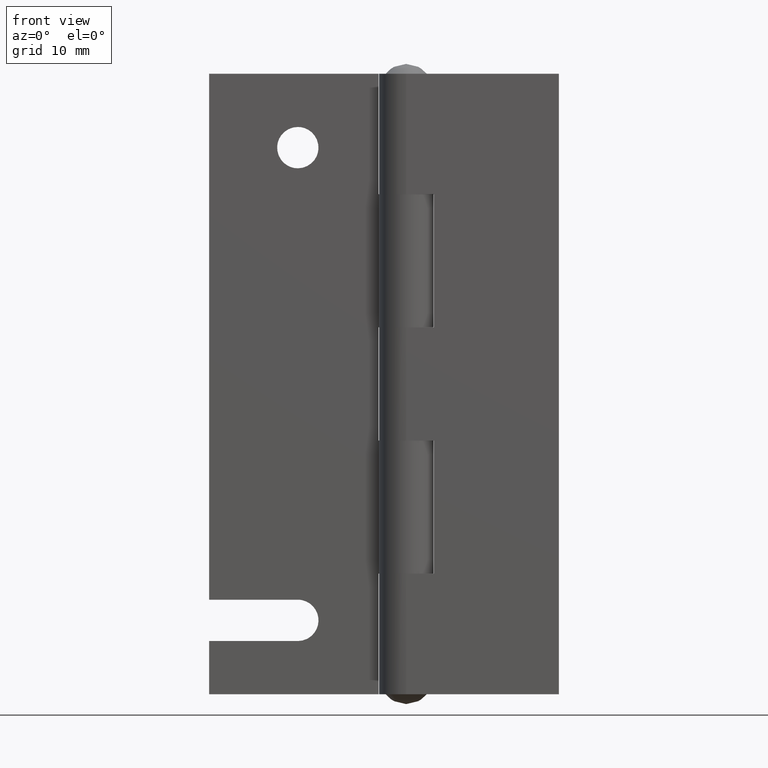
[diagram: clean part render]
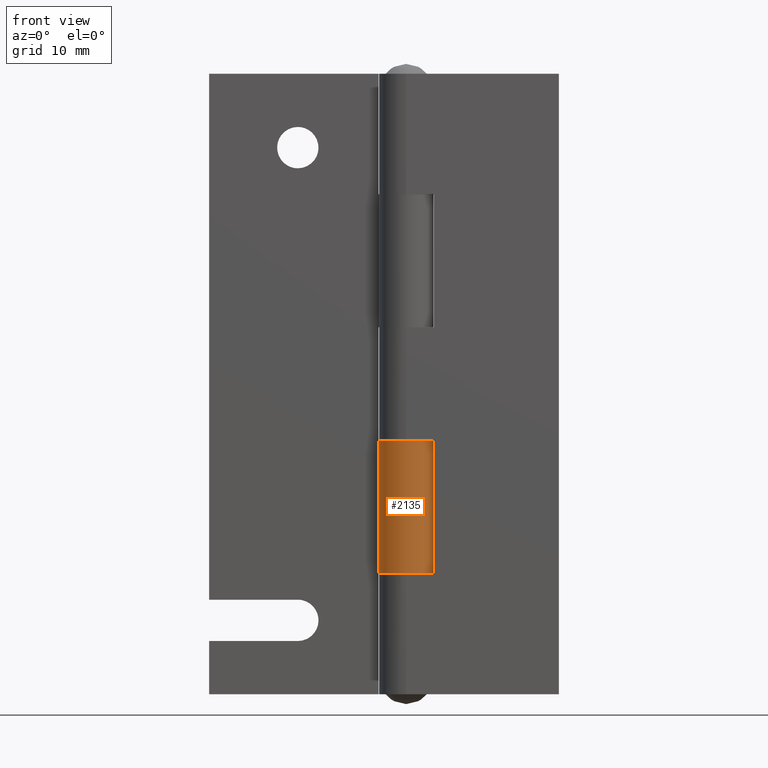
[diagram: same view with one face highlighted and labeled with its STEP entity id]
A machine part, front view. The second image highlights one B-rep face of the part: STEP entity #2135.
In plain terms, the highlighted face is a freeform B-spline surface patch.
Its self-contained STEP definition (entity closure, byte-faithful):
#1521=CARTESIAN_POINT('',(-2.161596632121730,1.700000000000000,25.750000000000000));
#1522=VERTEX_POINT('',#1521);
#1528=CARTESIAN_POINT('',(0.0,2.750000000000000,25.750000000000000));
#1529=VERTEX_POINT('',#1528);
#1530=CARTESIAN_POINT('',(0.0,2.750000000000000,25.750000000000000));
#1531=CARTESIAN_POINT('',(2.189246665130535,2.750000000000000,25.750000000000007));
#1532=CARTESIAN_POINT('',(2.680012078636981,0.616469997939796,25.750000000000000));
#1533=CARTESIAN_POINT('',(3.170777492143427,-1.517060004120410,25.750000000000007));
#1534=CARTESIAN_POINT('',(1.201561484069792,-2.473610721192807,25.750000000000000));
#1535=CARTESIAN_POINT('',(-0.767654524003843,-3.430161438265203,25.750000000000007));
#1536=CARTESIAN_POINT('',(-2.141301820012224,-1.725493122447127,25.750000000000000));
#1537=CARTESIAN_POINT('',(-3.514949116020605,-0.020824806629052,25.750000000000007));
#1538=CARTESIAN_POINT('',(-2.161596632121729,1.700000000000000,25.750000000000000));
#1546=(BOUNDED_CURVE()B_SPLINE_CURVE(2,(#1530,#1531,#1532,#1533,#1534,#1535,#1536,#1537,#1538),.UNSPECIFIED.,.F.,.U.)B_SPLINE_CURVE_WITH_KNOTS((3,2,2,2,3),(0.0,0.250000000000000,0.500000000000000,0.750000000000000,1.0),.UNSPECIFIED.)CURVE()GEOMETRIC_REPRESENTATION_ITEM()RATIONAL_B_SPLINE_CURVE((1.0,0.782358903682237,1.0,0.782358903682237,1.0,0.782358903682237,1.0,0.782358903682237,1.0))REPRESENTATION_ITEM(''));
#1547=EDGE_CURVE('',#1529,#1522,#1546,.T.);
#1711=CARTESIAN_POINT('',(0.0,2.750000000000000,12.250000000000000));
#1712=VERTEX_POINT('',#1711);
#1718=CARTESIAN_POINT('',(-2.161596632121730,1.700000000000000,12.250000000000000));
#1719=VERTEX_POINT('',#1718);
#1720=CARTESIAN_POINT('',(-2.161596632121728,1.700000000000001,12.250000000000000));
#1721=CARTESIAN_POINT('',(-3.514949116020605,-0.020824806629050,12.250000000000002));
#1722=CARTESIAN_POINT('',(-2.141301820012225,-1.725493122447126,12.250000000000000));
#1723=CARTESIAN_POINT('',(-0.767654524003846,-3.430161438265202,12.250000000000002));
#1724=CARTESIAN_POINT('',(1.201561484069788,-2.473610721192809,12.250000000000000));
#1725=CARTESIAN_POINT('',(3.170777492143426,-1.517060004120415,12.250000000000002));
#1726=CARTESIAN_POINT('',(2.680012078636981,0.616469997939794,12.250000000000000));
#1727=CARTESIAN_POINT('',(2.189246665130536,2.750000000000000,12.250000000000002));
#1728=CARTESIAN_POINT('',(0.0,2.750000000000000,12.250000000000000));
#1736=(BOUNDED_CURVE()B_SPLINE_CURVE(2,(#1720,#1721,#1722,#1723,#1724,#1725,#1726,#1727,#1728),.UNSPECIFIED.,.F.,.U.)B_SPLINE_CURVE_WITH_KNOTS((3,2,2,2,3),(0.0,0.250000000000000,0.500000000000000,0.750000000000000,1.0),.UNSPECIFIED.)CURVE()GEOMETRIC_REPRESENTATION_ITEM()RATIONAL_B_SPLINE_CURVE((1.0,0.782358903682237,1.0,0.782358903682237,1.0,0.782358903682237,1.0,0.782358903682237,1.0))REPRESENTATION_ITEM(''));
#1737=EDGE_CURVE('',#1719,#1712,#1736,.T.);
#2095=CARTESIAN_POINT('',(-2.091116405400085,1.785982132908004,26.087500000000009));
#2096=CARTESIAN_POINT('',(-2.091116405400085,1.785982132908004,11.904062500000000));
#2097=CARTESIAN_POINT('',(-3.556834062676618,0.069847249842288,26.087500000000009));
#2098=CARTESIAN_POINT('',(-3.556834062676618,0.069847249842288,11.904062499999998));
#2099=CARTESIAN_POINT('',(-2.159621559922048,-1.702508360602043,26.087500000000009));
#2100=CARTESIAN_POINT('',(-2.159621559922048,-1.702508360602043,11.904062500000000));
#2101=CARTESIAN_POINT('',(-0.762409057167478,-3.474863971046374,26.087500000000009));
#2102=CARTESIAN_POINT('',(-0.762409057167478,-3.474863971046374,11.904062499999998));
#2103=CARTESIAN_POINT('',(1.248473874283754,-2.450267941518011,26.087500000000009));
#2104=CARTESIAN_POINT('',(1.248473874283754,-2.450267941518011,11.904062500000000));
#2105=CARTESIAN_POINT('',(3.259356805734985,-1.425671911989647,26.087500000000009));
#2106=CARTESIAN_POINT('',(3.259356805734985,-1.425671911989647,11.904062499999998));
#2107=CARTESIAN_POINT('',(2.646751900247529,0.746461237128954,26.087500000000009));
#2108=CARTESIAN_POINT('',(2.646751900247529,0.746461237128954,11.904062500000000));
#2109=CARTESIAN_POINT('',(2.034146994760073,2.918594386247555,26.087500000000009));
#2110=CARTESIAN_POINT('',(2.034146994760073,2.918594386247555,11.904062499999998));
#2111=CARTESIAN_POINT('',(-0.215762513251574,2.741522667766101,26.087500000000009));
#2112=CARTESIAN_POINT('',(-0.215762513251574,2.741522667766101,11.904062500000000));
#2120=(BOUNDED_SURFACE()B_SPLINE_SURFACE(1,2,((#2095,#2097,#2099,#2101,#2103,#2105,#2107,#2109,#2111),(#2096,#2098,#2100,#2102,#2104,#2106,#2108,#2110,#2112)),.UNSPECIFIED.,.F.,.F.,.U.)B_SPLINE_SURFACE_WITH_KNOTS((2,2),(3,2,2,2,3),(0.0,14.183437500000011),(0.0,3.935862934459764,7.871725868919529,11.807588803379289,15.743451737839059),.UNSPECIFIED.)GEOMETRIC_REPRESENTATION_ITEM()RATIONAL_B_SPLINE_SURFACE(((1.0,0.773010453362737,1.0,0.773010453362737,1.0,0.773010453362737,1.0,0.773010453362737,1.0),(1.0,0.773010453362737,1.0,0.773010453362737,1.0,0.773010453362737,1.0,0.773010453362737,1.0)))REPRESENTATION_ITEM('')SURFACE());
#2121=ORIENTED_EDGE('',*,*,#1547,.T.);
#2122=CARTESIAN_POINT('',(-2.161596632121730,1.700000000000000,25.750000000000000));
#2123=CARTESIAN_POINT('',(-2.161596632121730,1.700000000000000,12.250000000000000));
#2124=QUASI_UNIFORM_CURVE('',1,(#2122,#2123),.UNSPECIFIED.,.F.,.U.);
#2125=EDGE_CURVE('',#1522,#1719,#2124,.T.);
#2126=ORIENTED_EDGE('',*,*,#2125,.T.);
#2127=ORIENTED_EDGE('',*,*,#1737,.T.);
#2128=CARTESIAN_POINT('',(0.0,2.750000000000000,25.750000000000000));
#2129=CARTESIAN_POINT('',(0.0,2.750000000000000,12.250000000000000));
#2130=QUASI_UNIFORM_CURVE('',1,(#2128,#2129),.UNSPECIFIED.,.F.,.U.);
#2131=EDGE_CURVE('',#1529,#1712,#2130,.T.);
#2132=ORIENTED_EDGE('',*,*,#2131,.F.);
#2133=EDGE_LOOP('',(#2121,#2126,#2127,#2132));
#2134=FACE_OUTER_BOUND('',#2133,.T.);
#2135=ADVANCED_FACE('',(#2134),#2120,.T.);